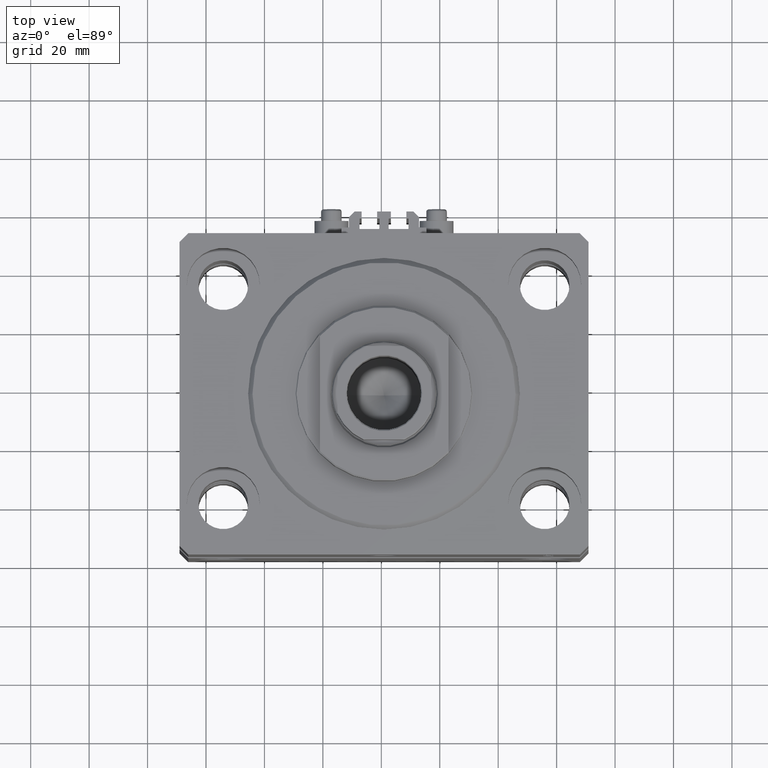
[diagram: clean part render]
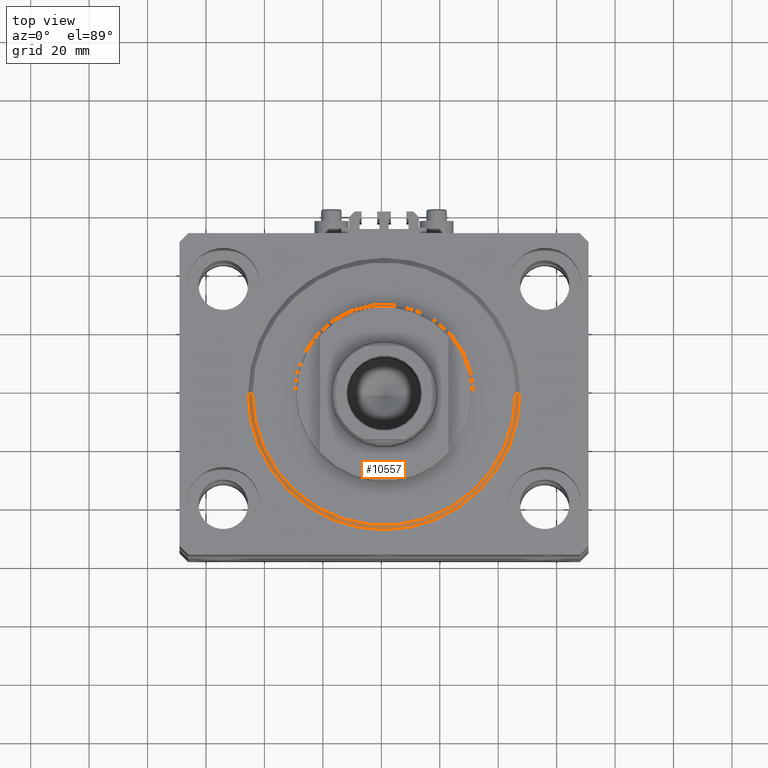
[diagram: same view with one face highlighted and labeled with its STEP entity id]
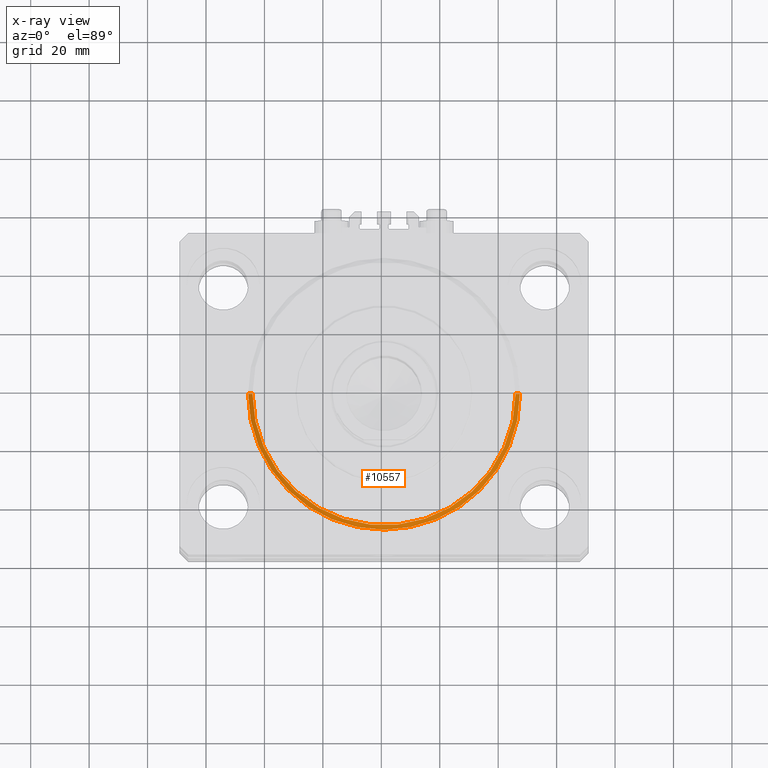
[diagram: x-ray of the same camera — body ghosted, the highlighted face saturated]
A machine part, top view. The second image highlights one B-rep face of the part: STEP entity #10557.
The next image is the same camera in x-ray: the body ghosted, the highlighted face saturated — about 0% of this face is hidden behind the body in this view.
In plain terms, the highlighted conical surface has half-angle 45 deg.
Its self-contained STEP definition (entity closure, byte-faithful):
#200 = VERTEX_POINT ( 'NONE', #18956 ) ;
#644 = CARTESIAN_POINT ( 'NONE',  ( 0.000000000000000000, 0.000000000000000000, 1.499999999999980460 ) ) ;
#2196 = AXIS2_PLACEMENT_3D ( 'NONE', #27843, #8909, #15887 ) ;
#2681 = LINE ( 'NONE', #42297, #2951 ) ;
#2951 = VECTOR ( 'NONE', #11409, 1000.000000000000114 ) ;
#6210 = ORIENTED_EDGE ( 'NONE', *, *, #7708, .T. ) ;
#7642 = FACE_OUTER_BOUND ( 'NONE', #20788, .T. ) ;
#7708 = EDGE_CURVE ( 'NONE', #15077, #25077, #16973, .T. ) ;
#7779 = AXIS2_PLACEMENT_3D ( 'NONE', #46495, #7878, #41521 ) ;
#7878 = DIRECTION ( 'NONE',  ( -0.000000000000000000, -0.000000000000000000, -1.000000000000000000 ) ) ;
#8039 = CARTESIAN_POINT ( 'NONE',  ( -46.50000000000000000, 0.000000000000000000, 1.499999999999980460 ) ) ;
#8909 = DIRECTION ( 'NONE',  ( -0.000000000000000000, -0.000000000000000000, 1.000000000000000000 ) ) ;
#9038 = CARTESIAN_POINT ( 'NONE',  ( 46.50000000000000000, 5.694607616035192278E-15, 1.499999999999980460 ) ) ;
#9854 = ORIENTED_EDGE ( 'NONE', *, *, #41497, .F. ) ;
#10557 = ADVANCED_FACE ( 'NONE', ( #7642 ), #22210, .T. ) ;
#11409 = DIRECTION ( 'NONE',  ( -0.7071067811865524577, 8.659560562354993255E-17, 0.7071067811865425767 ) ) ;
#15077 = VERTEX_POINT ( 'NONE', #36646 ) ;
#15887 = DIRECTION ( 'NONE',  ( 1.000000000000000000, 0.000000000000000000, 0.000000000000000000 ) ) ;
#16449 = ORIENTED_EDGE ( 'NONE', *, *, #40568, .F. ) ;
#16511 = VECTOR ( 'NONE', #28190, 1000.000000000000114 ) ;
#16573 = ORIENTED_EDGE ( 'NONE', *, *, #39501, .F. ) ;
#16973 = LINE ( 'NONE', #47648, #16511 ) ;
#18609 = DIRECTION ( 'NONE',  ( 1.000000000000000000, 0.000000000000000000, 0.000000000000000000 ) ) ;
#18956 = CARTESIAN_POINT ( 'NONE',  ( -45.00000000000000000, 5.602759106099140917E-15, 0.000000000000000000 ) ) ;
#19585 = DIRECTION ( 'NONE',  ( -0.000000000000000000, -0.000000000000000000, 1.000000000000000000 ) ) ;
#19721 = CIRCLE ( 'NONE', #7779, 45.00000000000000000 ) ;
#20788 = EDGE_LOOP ( 'NONE', ( #16573, #16449, #6210, #9854 ) ) ;
#22210 = CONICAL_SURFACE ( 'NONE', #34945, 46.50000000000000000, 0.7853981633974552734 ) ;
#25077 = VERTEX_POINT ( 'NONE', #9038 ) ;
#27278 = VERTEX_POINT ( 'NONE', #8039 ) ;
#27843 = CARTESIAN_POINT ( 'NONE',  ( 0.000000000000000000, 0.000000000000000000, 1.499999999999980460 ) ) ;
#28190 = DIRECTION ( 'NONE',  ( 0.7071067811865524577, 0.000000000000000000, 0.7071067811865425767 ) ) ;
#34945 = AXIS2_PLACEMENT_3D ( 'NONE', #644, #19585, #18609 ) ;
#36646 = CARTESIAN_POINT ( 'NONE',  ( 45.00000000000000000, 0.000000000000000000, 0.000000000000000000 ) ) ;
#39501 = EDGE_CURVE ( 'NONE', #200, #27278, #2681, .T. ) ;
#40568 = EDGE_CURVE ( 'NONE', #15077, #200, #19721, .T. ) ;
#41497 = EDGE_CURVE ( 'NONE', #27278, #25077, #47619, .T. ) ;
#41521 = DIRECTION ( 'NONE',  ( 1.000000000000000000, 0.000000000000000000, 0.000000000000000000 ) ) ;
#42297 = CARTESIAN_POINT ( 'NONE',  ( -46.50000000000000000, 5.694607616035192278E-15, 1.499999999999980460 ) ) ;
#46495 = CARTESIAN_POINT ( 'NONE',  ( 0.000000000000000000, 0.000000000000000000, 0.000000000000000000 ) ) ;
#47619 = CIRCLE ( 'NONE', #2196, 46.50000000000000000 ) ;
#47648 = CARTESIAN_POINT ( 'NONE',  ( 46.50000000000000000, 0.000000000000000000, 1.499999999999980460 ) ) ;